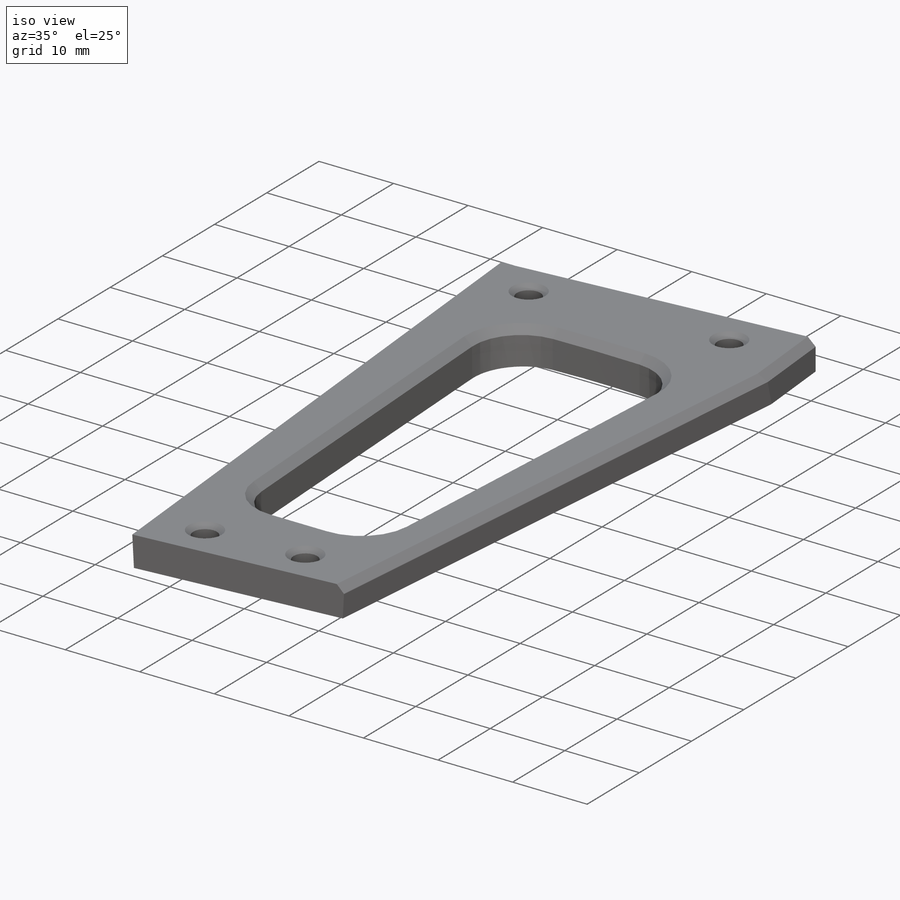
[diagram: iso view]
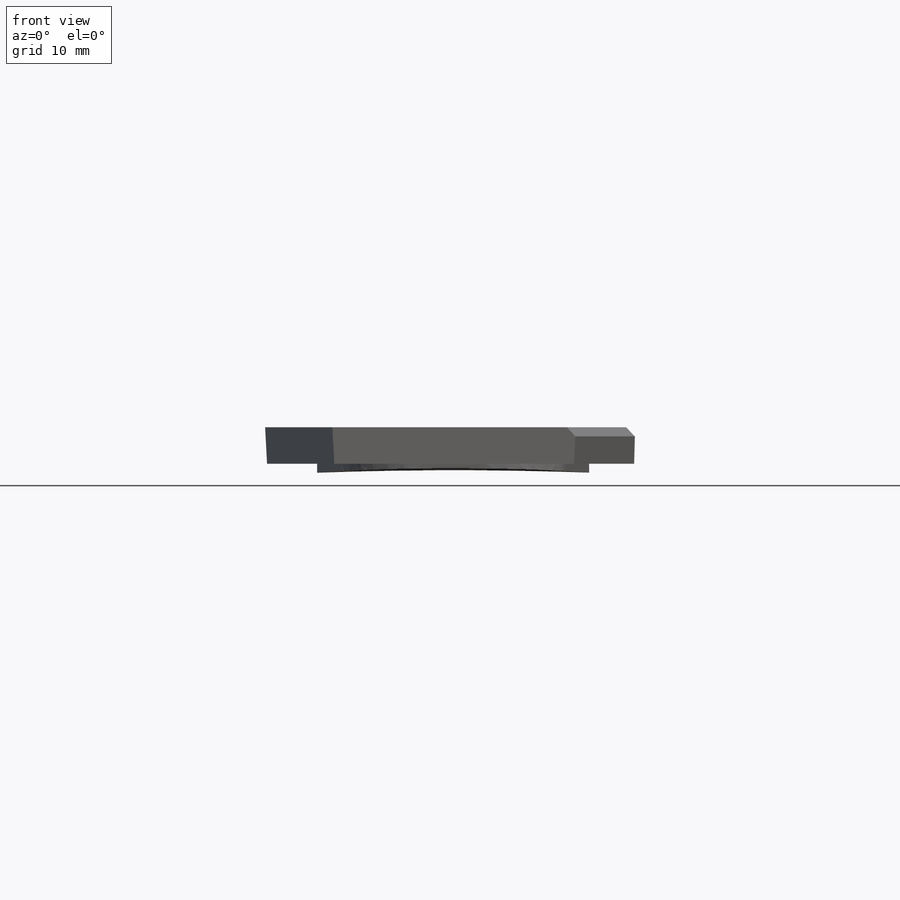
[diagram: front view]
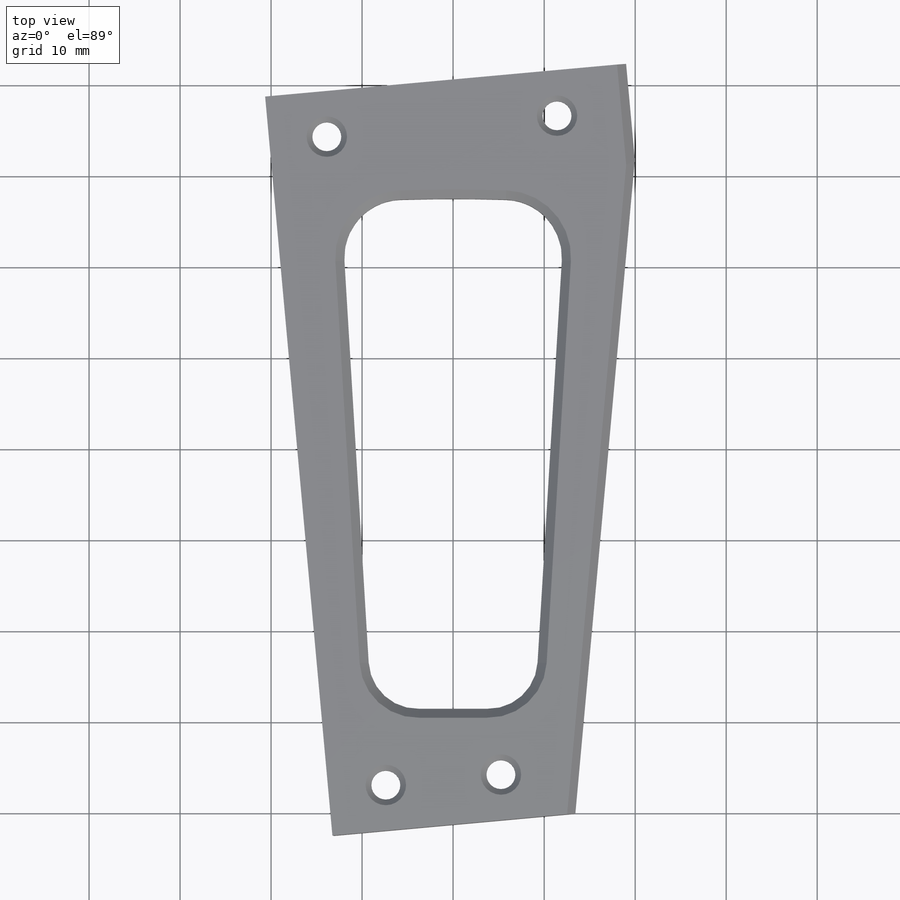
[diagram: top view]
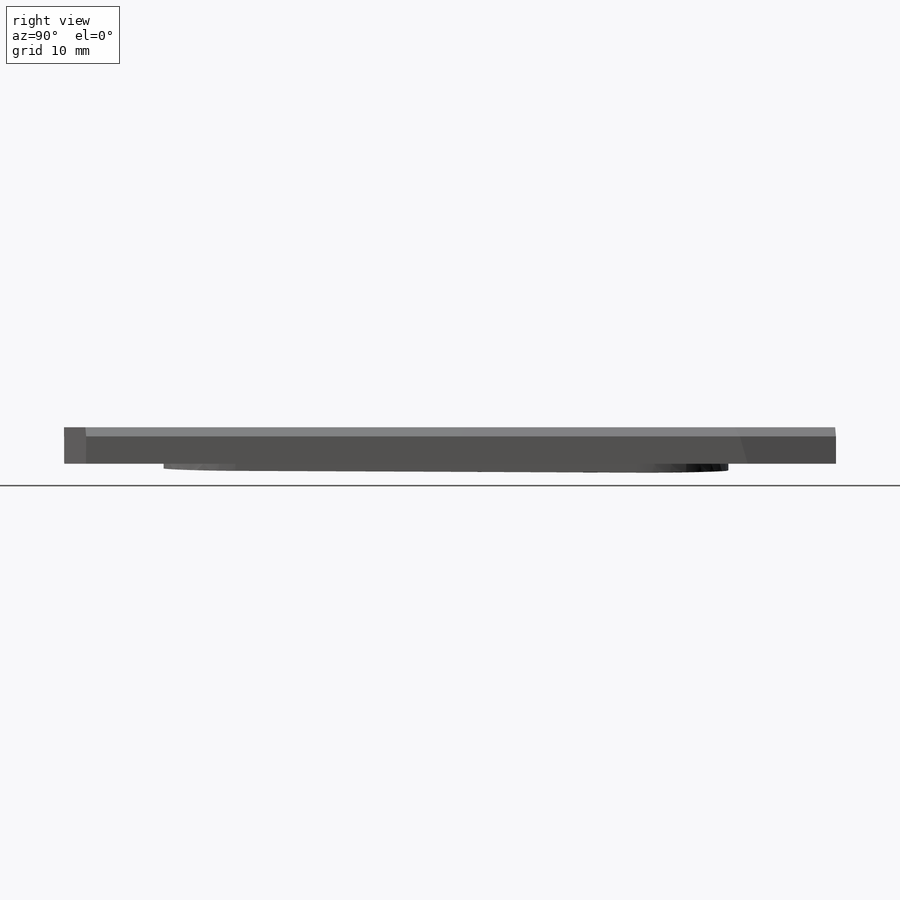
[diagram: right view]
SOLIDWORKS PART (.sldprt)
format: sldprt  version: not decoded by parser v0  size: 386,560 bytes
history: native  units: mm
features: sketch x7, cut_extrude x3, extrude x2, fillet x2, material x1, chamfer x1, hole x1 (+16 scaffold rows collapsed)
feature tree (33):
  scaffold x16  (default folders/planes/origin — collapsed)
  material  "Material <not specified>"
  sketch  "Sketch1"  dims[c1.D5=130.0mm c1.D1=42.0mm c1.D2=85.0mm c1.D3=~102.079964mm c2.D3=3.95deg c2.D4=~117.493861mm c3.D4=3.95deg c3.D6=116.0mm c3.D8=~179.54891mm c4.D8=3.8deg c4.D9=152.6mm c5.D9=3.8deg c5.D7=56.0mm]
  extrude  "Boss-Extrude1"  Depth=4mm
  fillet  "Fillet1"  Radius=6.35mm
  fillet  "Fillet2"  Radius=5.4mm
  sketch  "Sketch2"  dims[D1=3.0mm]
  extrude  "Boss-Extrude2"  Depth=2.3mm
  sketch  "Sketch3"
  cut_extrude  "Cut-Extrude1"  [1 undecoded]
  sketch  "Sketch8"  dims[D1=2.0mm]
  cut_extrude  "Cut-Extrude3"  [1 undecoded]
  chamfer  "Chamfer1"  Distance=1mm Angle=45deg
  hole  "1/8 (0.125) Diameter Hole1"  Diameter=3.175mm Depth=6.3mm
  sketch  "Sketch5"  dims[D1=6.35mm D2=25.4mm D3=12.7mm D4=5.0mm D5=5.0mm]
  sketch  "Sketch4"  dims[hole-wizard template sketch: 54 standard entries collapsed; hole parameters kept: c17.Thru Hole Dia.=3.175mm c17.Thru Hole Depth=6.3mm c17.Near C'Sink Dia.=4.445mm c17.D4=~3.666174mm c17.Near C'Sink Angle=90.0deg]
  sketch  "Sketch7"  dims[D1=4.7625mm]
  cut_extrude  "Cut-Extrude2"  Depth=2mm
decode coverage: 13 of 16 modeling features carry decoded parameters
note: ~ marks probable driven/reference dimensions
note: 2 parameter values undecoded
note: suppression state not decoded; provenance and decode notes live in map.json
